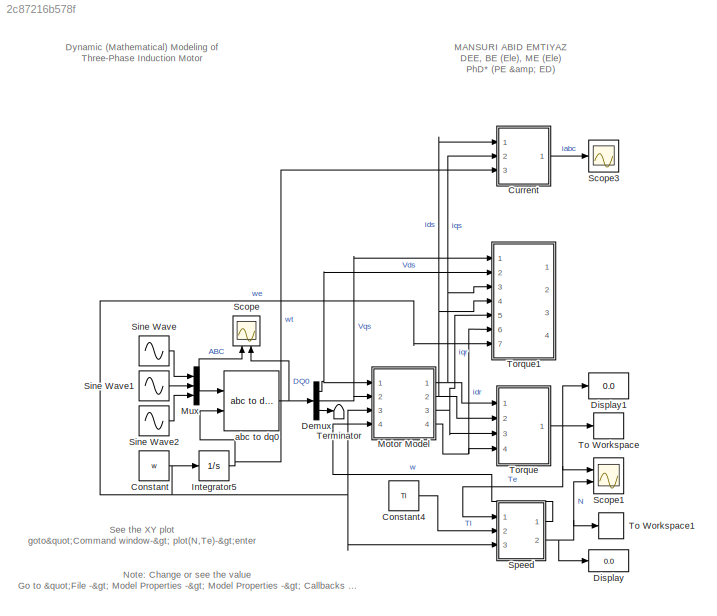
MODEL slx_2c87216b578f
KIND model
CONFIG AbsTol = auto
CONFIG EnableMultiTasking = off
CONFIG FixedStep = 1e-6
CONFIG InitFcn = Rs=1.405; % Stator Resistor (ohm)\nRr=1.395; % Rotor Resistor (ohm)\nLs=0.178039; % Stator Inductance (H)\nLr=0.178039; % Rotor Inductance (H)\nLm=0.1722; % Mutual Inductance (H)\nJ=0.0131; % Motor Inertia (Kg.m^2) \nP=4; % Pole\nTl=26.50; % Load Torque (N.m)\nw=2*pi*50; % w=2*pi*frequency\n\nLls=Ls-Lm;\nLlr=Lr-Lm;\n\n%%%%%\n% Ls=Lls+Lm\n% Lr=Llr+Lm\n% Nominal power = 4000 (VA)\n% Voltage (line-line) = 400 (Vrms)\n...<+39ch>
CONFIG MaxStep = auto
CONFIG MinStep = auto
CONFIG RelTol = 1e-3
CONFIG SampleTimeConstraint = Unconstrained
CONFIG Solver = ode5
CONFIG SolverName = ode5
CONFIG StartTime = 0.0
CONFIG StopTime = 1
BLOCK [Constant] Constant
  Value = w
BLOCK [Constant] Constant4
  Value = Tl
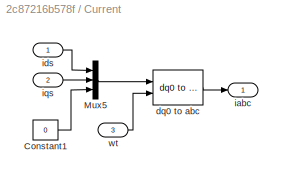
BLOCK [SubSystem] Current
  Ports = [3, 1]
  RequestExecContextInheritance = off
BLOCK [Constant] Current/Constant1
  Value = 0
BLOCK [Mux] Current/Mux5
  DisplayOption = bar
  Inputs = 3
  Ports = [3, 1]
BLOCK [Reference] Current/dq0 to abc  REF=powerlib_meascontrol/Transformations/dq0 to abc
  Ports = [2, 1]
  SourceBlock = powerlib_meascontrol/Transformations/dq0 to abc
  SourceProductBaseCode = PS
  SourceProductName = Simscape Electrical
  SourceType = dq0 to abc Transformation
BLOCK [Outport] Current/iabc
  IconDisplay = Port number
BLOCK [Inport] Current/ids
  IconDisplay = Port number
BLOCK [Inport] Current/iqs
  IconDisplay = Port number
  Port = 2
BLOCK [Inport] Current/wt
  IconDisplay = Port number
  Port = 3
BLOCK [Demux] Demux
  DisplayOption = bar
  Outputs = 3
  Ports = [1, 3]
BLOCK [Display] Display
  Decimation = 1
  Ports = [1]
BLOCK [Display] Display1
  Decimation = 1
  Ports = [1]
BLOCK [Integrator] Integrator5
  Ports = [1, 1]
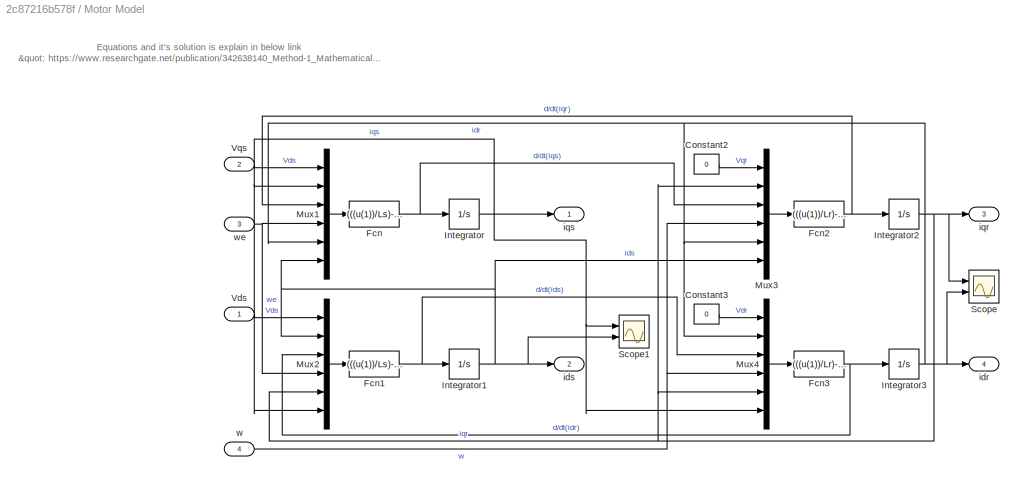
BLOCK [SubSystem] Motor Model
  Ports = [4, 4]
  RequestExecContextInheritance = off
BLOCK [Constant] Motor Model/Constant2
  Value = 0
BLOCK [Constant] Motor Model/Constant3
  Value = 0
BLOCK [Fcn] Motor Model/Fcn
  Expr = (((u(1))/Ls)-((Rs*u(2))/Ls)-((u(3)*Lm)/Ls)-(u(4)*u(6))-((u(4)*Lm*u(5))/Ls))
BLOCK [Fcn] Motor Model/Fcn1
  Expr = (((u(1))/Ls)-((Rs*u(2))/Ls)-((u(3)*Lm)/Ls)+(u(4)*u(6))+((u(4)*Lm*u(5))/Ls))
BLOCK [Fcn] Motor Model/Fcn2
  Expr = (((u(1))/Lr)-((Rr*u(2))/Lr)-((u(3)*Lm)/Lr)-(u(4)*u(5))-((u(4)*Lm*u(6))/Lr))
BLOCK [Fcn] Motor Model/Fcn3
  Expr = (((u(1))/Lr)-((Rr*u(2))/Lr)-((u(3)*Lm)/Lr)+(u(4)*u(5))+((u(4)*Lm*u(6))/Lr))
BLOCK [Integrator] Motor Model/Integrator
  Ports = [1, 1]
BLOCK [Integrator] Motor Model/Integrator1
  Ports = [1, 1]
BLOCK [Integrator] Motor Model/Integrator2
  Ports = [1, 1]
BLOCK [Integrator] Motor Model/Integrator3
  Ports = [1, 1]
BLOCK [Mux] Motor Model/Mux1
  DisplayOption = bar
  Inputs = 6
  Ports = [6, 1]
BLOCK [Mux] Motor Model/Mux2
  DisplayOption = bar
  Inputs = 6
  Ports = [6, 1]
BLOCK [Mux] Motor Model/Mux3
  DisplayOption = bar
  Inputs = 6
  Ports = [6, 1]
BLOCK [Mux] Motor Model/Mux4
  DisplayOption = bar
  Inputs = 6
  Ports = [6, 1]
BLOCK [Scope] Motor Model/Scope
  Floating = off
  NumInputPorts = 2
  Ports = [2]
  ScopeSpecificationString = Simulink.scopes.TimeScopeBlockCfg('CurrentConfiguration', extmgr.ConfigurationSet(extmgr.Configuration('Core','General UI',true,'FigureColor',[1 1 1]),extmgr.Configuration('Core','Source UI',true),extmgr.Configuration('Sources','WiredSimulink',true,'DataLoggingVariableName','ScopeData1'),extmgr.Configuration('Visuals','Time Domain',true,'TimeAxisLabels','All','SerializedDisplays',{struct('MinYLimR...<+1743ch>
BLOCK [Scope] Motor Model/Scope1
  Floating = off
  NumInputPorts = 2
  Ports = [2]
  ScopeSpecificationString = Simulink.scopes.TimeScopeBlockCfg('CurrentConfiguration', extmgr.ConfigurationSet(extmgr.Configuration('Core','General UI',true,'FigureColor',[1 1 1]),extmgr.Configuration('Core','Source UI',true),extmgr.Configuration('Sources','WiredSimulink',true,'DataLoggingVariableName','ScopeData2'),extmgr.Configuration('Visuals','Time Domain',true,'TimeAxisLabels','All','SerializedDisplays',{struct('MinYLimR...<+1686ch>
BLOCK [Inport] Motor Model/Vds
  IconDisplay = Port number
BLOCK [Inport] Motor Model/Vqs
  IconDisplay = Port number
  Port = 2
BLOCK [Outport] Motor Model/idr
  IconDisplay = Port number
  Port = 4
BLOCK [Outport] Motor Model/ids
  IconDisplay = Port number
  Port = 2
BLOCK [Outport] Motor Model/iqr
  IconDisplay = Port number
  Port = 3
BLOCK [Outport] Motor Model/iqs
  IconDisplay = Port number
BLOCK [Inport] Motor Model/w
  IconDisplay = Port number
  Port = 4
BLOCK [Inport] Motor Model/we
  IconDisplay = Port number
  Port = 3
BLOCK [Mux] Mux
  DisplayOption = bar
  Inputs = 3
  Ports = [3, 1]
BLOCK [Scope] Scope
  Floating = off
  NumInputPorts = 2
  Ports = [2]
  ScopeSpecificationString = Simulink.scopes.TimeScopeBlockCfg('CurrentConfiguration', extmgr.ConfigurationSet(extmgr.Configuration('Core','General UI',true,'FigureColor',[1 1 1]),extmgr.Configuration('Core','Source UI',true),extmgr.Configuration('Sources','WiredSimulink',true),extmgr.Configuration('Visuals','Time Domain',true,'TimeAxisLabels','All','SerializedDisplays',{struct('MinYLimReal','-466.875','MaxYLimReal','466.875'...<+3137ch>
BLOCK [Scope] Scope1
  Floating = off
  NumInputPorts = 2
  Ports = [2]
  ScopeSpecificationString = Simulink.scopes.TimeScopeBlockCfg('CurrentConfiguration', extmgr.ConfigurationSet(extmgr.Configuration('Core','General UI',true,'FigureColor',[1 1 1]),extmgr.Configuration('Core','Source UI',true),extmgr.Configuration('Sources','WiredSimulink',true,'DataLoggingVariableName','ScopeData1'),extmgr.Configuration('Visuals','Time Domain',true,'TimeAxisLabels','All','SerializedDisplays',{struct('MinYLimR...<+2286ch>
BLOCK [Scope] Scope3
  Floating = off
  NumInputPorts = 1
  Ports = [1]
  ScopeSpecificationString = Simulink.scopes.TimeScopeBlockCfg('CurrentConfiguration', extmgr.ConfigurationSet(extmgr.Configuration('Core','General UI',true,'FigureColor',[1 1 1]),extmgr.Configuration('Core','Source UI',true),extmgr.Configuration('Sources','WiredSimulink',true,'DataLoggingVariableName','ScopeData1','DataLogging',true),extmgr.Configuration('Visuals','Time Domain',true,'TimeAxisLabels','All','SerializedDisplays...<+2485ch>
BLOCK [Sin] Sine Wave
  Amplitude = 373.5
  Frequency = 2*pi*50
  Ports = [0, 1]
  SampleTime = 0
BLOCK [Sin] Sine Wave1
  Amplitude = 373.5
  Frequency = 2*pi*50
  Phase = -((2*pi)/3)
  Ports = [0, 1]
  SampleTime = 0
BLOCK [Sin] Sine Wave2
  Amplitude = 373.5
  Frequency = 2*pi*50
  Phase = ((2*pi)/3)
  Ports = [0, 1]
  SampleTime = 0
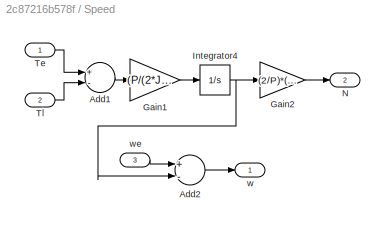
BLOCK [SubSystem] Speed
  Ports = [3, 2]
  RequestExecContextInheritance = off
BLOCK [Sum] Speed/Add1
  InputSameDT = off
  Inputs = +-
  OutDataTypeStr = Inherit: Inherit via internal rule
  Ports = [2, 1]
  SaturateOnIntegerOverflow = off
BLOCK [Sum] Speed/Add2
  InputSameDT = off
  Inputs = +-
  OutDataTypeStr = Inherit: Inherit via internal rule
  Ports = [2, 1]
  SaturateOnIntegerOverflow = off
BLOCK [Gain] Speed/Gain1
  Gain = (P/(2*J))
  OutDataTypeStr = Inherit: Inherit via internal rule
  ParamDataTypeStr = Inherit: Inherit via internal rule
  SaturateOnIntegerOverflow = off
BLOCK [Gain] Speed/Gain2
  Gain = (2/P)*(60/(2*pi))
  OutDataTypeStr = Inherit: Inherit via internal rule
  ParamDataTypeStr = Inherit: Inherit via internal rule
  SaturateOnIntegerOverflow = off
BLOCK [Integrator] Speed/Integrator4
  Ports = [1, 1]
BLOCK [Outport] Speed/N
  IconDisplay = Port number
  Port = 2
BLOCK [Inport] Speed/Te
  IconDisplay = Port number
BLOCK [Inport] Speed/Tl
  IconDisplay = Port number
  Port = 2
BLOCK [Outport] Speed/w
  IconDisplay = Port number
BLOCK [Inport] Speed/we
  IconDisplay = Port number
  Port = 3
BLOCK [Terminator] Terminator
BLOCK [ToWorkspace] To Workspace
  FixptAsFi = on
  MaxDataPoints = inf
  Ports = [1]
  SampleTime = -1
  VariableName = Te
BLOCK [ToWorkspace] To Workspace1
  FixptAsFi = on
  MaxDataPoints = inf
  Ports = [1]
  SampleTime = -1
  VariableName = N
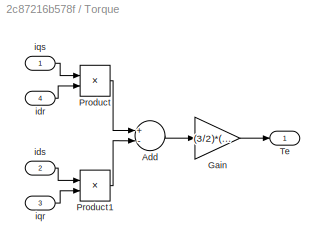
BLOCK [SubSystem] Torque
  Ports = [4, 1]
  RequestExecContextInheritance = off
BLOCK [Sum] Torque/Add
  InputSameDT = off
  Inputs = +-
  OutDataTypeStr = Inherit: Inherit via internal rule
  Ports = [2, 1]
  SaturateOnIntegerOverflow = off
BLOCK [Gain] Torque/Gain
  Gain = (3/2)*(P/2)*Lm
  OutDataTypeStr = Inherit: Inherit via internal rule
  ParamDataTypeStr = Inherit: Inherit via internal rule
  SaturateOnIntegerOverflow = off
BLOCK [Product] Torque/Product
  InputSameDT = off
  OutDataTypeStr = Inherit: Inherit via internal rule
  Ports = [2, 1]
  RndMeth = Floor
  SaturateOnIntegerOverflow = off
BLOCK [Product] Torque/Product1
  InputSameDT = off
  OutDataTypeStr = Inherit: Inherit via internal rule
  Ports = [2, 1]
  RndMeth = Floor
  SaturateOnIntegerOverflow = off
BLOCK [Outport] Torque/Te
  IconDisplay = Port number
BLOCK [Inport] Torque/idr
  IconDisplay = Port number
  Port = 4
BLOCK [Inport] Torque/ids
  IconDisplay = Port number
  Port = 2
BLOCK [Inport] Torque/iqr
  IconDisplay = Port number
  Port = 3
BLOCK [Inport] Torque/iqs
  IconDisplay = Port number
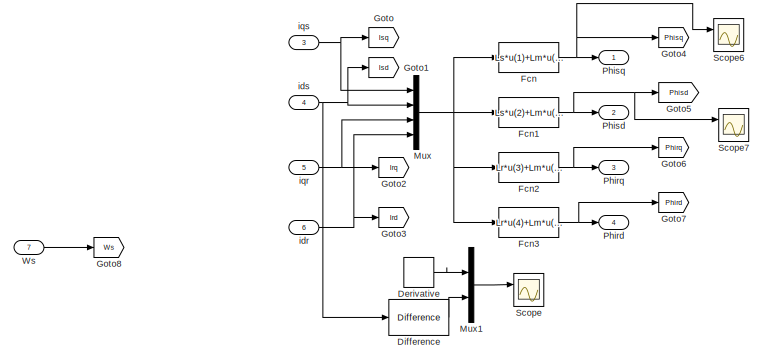
[diagram: Torque1 - part 1/2, top right region]
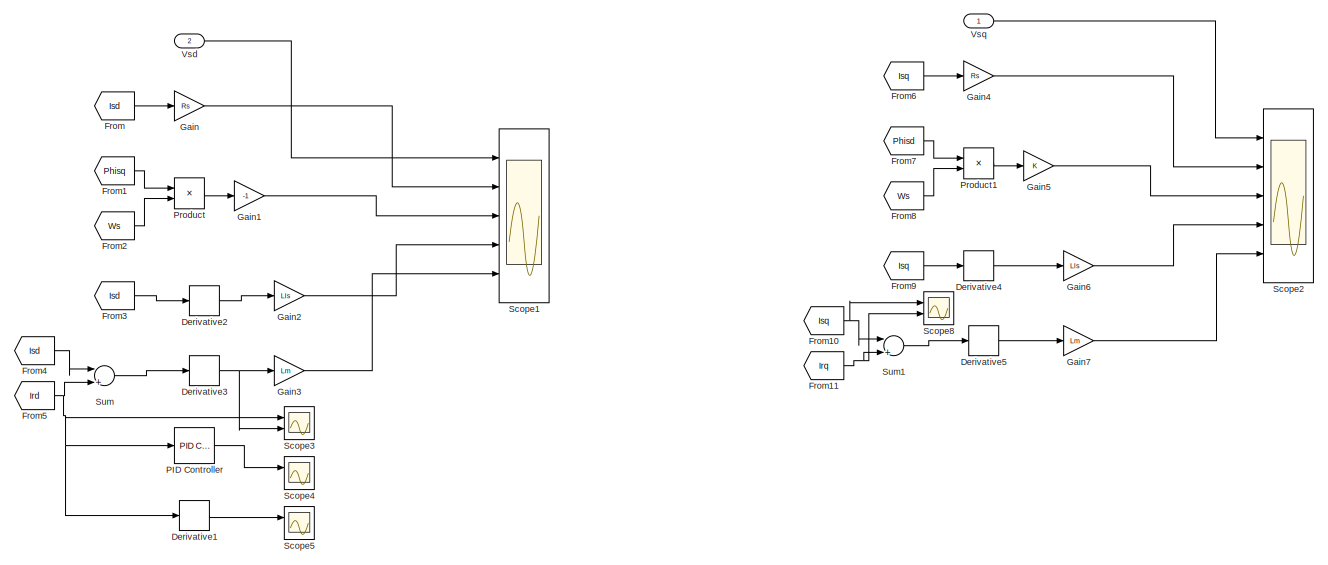
[diagram: Torque1 - part 2/2, full width, bottom band]
BLOCK [SubSystem] Torque1
  Ports = [7, 4]
  RequestExecContextInheritance = off
BLOCK [Derivative] Torque1/Derivative
BLOCK [Derivative] Torque1/Derivative1
BLOCK [Derivative] Torque1/Derivative2
BLOCK [Derivative] Torque1/Derivative3
BLOCK [Derivative] Torque1/Derivative4
BLOCK [Derivative] Torque1/Derivative5
BLOCK [Reference] Torque1/Difference  REF=simulink/Discrete/Difference
  Ports = [1, 1]
  SourceBlock = simulink/Discrete/Difference
  SourceProductBaseCode = SL
  SourceProductName = Simulink
  SourceType = Difference
BLOCK [Fcn] Torque1/Fcn
  Expr = Ls*u(1)+Lm*u(3)
BLOCK [Fcn] Torque1/Fcn1
  Expr = Ls*u(2)+Lm*u(4)
BLOCK [Fcn] Torque1/Fcn2
  Expr = Lr*u(3)+Lm*u(1)
BLOCK [Fcn] Torque1/Fcn3
  Expr = Lr*u(4)+Lm*u(2)
BLOCK [From] Torque1/From
  GotoTag = Isd
BLOCK [From] Torque1/From1
  GotoTag = Phisq
BLOCK [From] Torque1/From10
  GotoTag = Isq
BLOCK [From] Torque1/From11
  GotoTag = Irq
BLOCK [From] Torque1/From2
  GotoTag = Ws
BLOCK [From] Torque1/From3
  GotoTag = Isd
BLOCK [From] Torque1/From4
  GotoTag = Isd
BLOCK [From] Torque1/From5
  GotoTag = Ird
BLOCK [From] Torque1/From6
  GotoTag = Isq
BLOCK [From] Torque1/From7
  GotoTag = Phisd
BLOCK [From] Torque1/From8
  GotoTag = Ws
BLOCK [From] Torque1/From9
  GotoTag = Isq
BLOCK [Gain] Torque1/Gain
  Gain = Rs
  OutDataTypeStr = Inherit: Inherit via internal rule
  ParamDataTypeStr = Inherit: Inherit via internal rule
  SaturateOnIntegerOverflow = off
BLOCK [Gain] Torque1/Gain1
  Gain = -1
  OutDataTypeStr = Inherit: Inherit via internal rule
  ParamDataTypeStr = Inherit: Inherit via internal rule
  SaturateOnIntegerOverflow = off
BLOCK [Gain] Torque1/Gain2
  Gain = Lls
  OutDataTypeStr = Inherit: Inherit via internal rule
  ParamDataTypeStr = Inherit: Inherit via internal rule
  SaturateOnIntegerOverflow = off
BLOCK [Gain] Torque1/Gain3
  Gain = Lm
  OutDataTypeStr = Inherit: Inherit via internal rule
  ParamDataTypeStr = Inherit: Inherit via internal rule
  SaturateOnIntegerOverflow = off
BLOCK [Gain] Torque1/Gain4
  Gain = Rs
  OutDataTypeStr = Inherit: Inherit via internal rule
  ParamDataTypeStr = Inherit: Inherit via internal rule
  SaturateOnIntegerOverflow = off
BLOCK [Gain] Torque1/Gain5
  OutDataTypeStr = Inherit: Inherit via internal rule
  ParamDataTypeStr = Inherit: Inherit via internal rule
  SaturateOnIntegerOverflow = off
BLOCK [Gain] Torque1/Gain6
  Gain = Lls
  OutDataTypeStr = Inherit: Inherit via internal rule
  ParamDataTypeStr = Inherit: Inherit via internal rule
  SaturateOnIntegerOverflow = off
BLOCK [Gain] Torque1/Gain7
  Gain = Lm
  OutDataTypeStr = Inherit: Inherit via internal rule
  ParamDataTypeStr = Inherit: Inherit via internal rule
  SaturateOnIntegerOverflow = off
BLOCK [Goto] Torque1/Goto
  GotoTag = Isq
BLOCK [Goto] Torque1/Goto1
  GotoTag = Isd
BLOCK [Goto] Torque1/Goto2
  GotoTag = Irq
BLOCK [Goto] Torque1/Goto3
  GotoTag = Ird
BLOCK [Goto] Torque1/Goto4
  GotoTag = Phisq
BLOCK [Goto] Torque1/Goto5
  GotoTag = Phisd
BLOCK [Goto] Torque1/Goto6
  GotoTag = Phirq
BLOCK [Goto] Torque1/Goto7
  GotoTag = Phird
BLOCK [Goto] Torque1/Goto8
  GotoTag = Ws
BLOCK [Mux] Torque1/Mux
  DisplayOption = bar
  Ports = [4, 1]
BLOCK [Mux] Torque1/Mux1
  DisplayOption = bar
  Inputs = 2
  Ports = [2, 1]
BLOCK [Reference] Torque1/PID Controller  REF=simulink/Continuous/PID Controller
  Ports = [1, 1]
  SourceBlock = simulink/Continuous/PID Controller
  SourceProductBaseCode = SL
  SourceProductName = Simulink
  SourceType = PID 1dof
BLOCK [Outport] Torque1/Phird
  IconDisplay = Port number
  Port = 4
BLOCK [Outport] Torque1/Phirq
  IconDisplay = Port number
  Port = 3
BLOCK [Outport] Torque1/Phisd
  IconDisplay = Port number
  Port = 2
BLOCK [Outport] Torque1/Phisq
  IconDisplay = Port number
BLOCK [Product] Torque1/Product
  InputSameDT = off
  OutDataTypeStr = Inherit: Inherit via internal rule
  Ports = [2, 1]
  RndMeth = Floor
  SaturateOnIntegerOverflow = off
BLOCK [Product] Torque1/Product1
  InputSameDT = off
  OutDataTypeStr = Inherit: Inherit via internal rule
  Ports = [2, 1]
  RndMeth = Floor
  SaturateOnIntegerOverflow = off
BLOCK [Scope] Torque1/Scope
  Floating = off
  NumInputPorts = 2
  Ports = [2]
  ScopeSpecificationString = Simulink.scopes.TimeScopeBlockCfg('CurrentConfiguration', extmgr.ConfigurationSet(extmgr.Configuration('Core','General UI',true),extmgr.Configuration('Core','Source UI',true),extmgr.Configuration('Sources','WiredSimulink',true,'DataLoggingVariableName','ScopeData1'),extmgr.Configuration('Visuals','Time Domain',true,'SerializedDisplays',{struct('MinYLimReal','-0.01279','MaxYLimReal','0.03755','YLab...<+1423ch>
BLOCK [Scope] Torque1/Scope1
  Floating = off
  NumInputPorts = 5
  Ports = [5]
  ScopeSpecificationString = Simulink.scopes.TimeScopeBlockCfg('CurrentConfiguration', extmgr.ConfigurationSet(extmgr.Configuration('Core','General UI',true),extmgr.Configuration('Core','Source UI',true),extmgr.Configuration('Sources','WiredSimulink',true,'DataLoggingVariableName','ScopeData2'),extmgr.Configuration('Visuals','Time Domain',true,'SerializedDisplays',{struct('MinYLimReal','-56.31099','MaxYLimReal','421.25678','Y...<+6263ch>
BLOCK [Scope] Torque1/Scope2
  Floating = off
  NumInputPorts = 5
  Ports = [5]
  ScopeSpecificationString = Simulink.scopes.TimeScopeBlockCfg('CurrentConfiguration', extmgr.ConfigurationSet(extmgr.Configuration('Core','General UI',true),extmgr.Configuration('Core','Source UI',true),extmgr.Configuration('Sources','WiredSimulink',true,'DataLoggingVariableName','ScopeData3'),extmgr.Configuration('Visuals','Time Domain',true,'SerializedDisplays',{struct('MinYLimReal','76.61072','MaxYLimReal','288.86307','YL...<+6211ch>
BLOCK [Scope] Torque1/Scope3
  Floating = off
  NumInputPorts = 2
  Ports = [2]
  ScopeSpecificationString = Simulink.scopes.TimeScopeBlockCfg('CurrentConfiguration', extmgr.ConfigurationSet(extmgr.Configuration('Core','General UI',true),extmgr.Configuration('Core','Source UI',true),extmgr.Configuration('Sources','WiredSimulink',true,'DataLoggingVariableName','ScopeData4'),extmgr.Configuration('Visuals','Time Domain',true,'SerializedDisplays',{struct('MinYLimReal','-0.05327','MaxYLimReal','0.01893','YLab...<+1453ch>
BLOCK [Scope] Torque1/Scope4
  Floating = off
  NumInputPorts = 2
  Ports = [2]
  ScopeSpecificationString = Simulink.scopes.TimeScopeBlockCfg('CurrentConfiguration', extmgr.ConfigurationSet(extmgr.Configuration('Core','General UI',true),extmgr.Configuration('Core','Source UI',true),extmgr.Configuration('Sources','WiredSimulink',true,'DataLoggingVariableName','ScopeData5'),extmgr.Configuration('Visuals','Time Domain',true,'SerializedDisplays',{struct('MinYLimReal','-100','MaxYLimReal','100','YLabelReal',...<+1415ch>
BLOCK [Scope] Torque1/Scope5
  Floating = off
  NumInputPorts = 2
  Ports = [2]
  ScopeSpecificationString = Simulink.scopes.TimeScopeBlockCfg('CurrentConfiguration', extmgr.ConfigurationSet(extmgr.Configuration('Core','General UI',true),extmgr.Configuration('Core','Source UI',true),extmgr.Configuration('Sources','WiredSimulink',true,'DataLoggingVariableName','ScopeData6'),extmgr.Configuration('Visuals','Time Domain',true,'SerializedDisplays',{struct('MinYLimReal','-1000','MaxYLimReal','1000','YLabelReal...<+1445ch>
BLOCK [Scope] Torque1/Scope6
  Floating = off
  NumInputPorts = 2
  Ports = [2]
  ScopeSpecificationString = Simulink.scopes.TimeScopeBlockCfg('CurrentConfiguration', extmgr.ConfigurationSet(extmgr.Configuration('Core','General UI',true),extmgr.Configuration('Core','Source UI',true),extmgr.Configuration('Sources','WiredSimulink',true,'DataLoggingVariableName','ScopeData7'),extmgr.Configuration('Visuals','Time Domain',true,'SerializedDisplays',{struct('MinYLimReal','-1.76502','MaxYLimReal','0.19611','YLab...<+1429ch>
BLOCK [Scope] Torque1/Scope7
  Floating = off
  NumInputPorts = 2
  Ports = [2]
  ScopeSpecificationString = Simulink.scopes.TimeScopeBlockCfg('CurrentConfiguration', extmgr.ConfigurationSet(extmgr.Configuration('Core','General UI',true),extmgr.Configuration('Core','Source UI',true),extmgr.Configuration('Sources','WiredSimulink',true,'DataLoggingVariableName','ScopeData8'),extmgr.Configuration('Visuals','Time Domain',true,'SerializedDisplays',{struct('MinYLimReal','-0.42579','MaxYLimReal','1.14571','YLab...<+1404ch>
BLOCK [Scope] Torque1/Scope8
  Floating = off
  NumInputPorts = 2
  Ports = [2]
  ScopeSpecificationString = Simulink.scopes.TimeScopeBlockCfg('CurrentConfiguration', extmgr.ConfigurationSet(extmgr.Configuration('Core','General UI',true),extmgr.Configuration('Core','Source UI',true),extmgr.Configuration('Sources','WiredSimulink',true,'DataLoggingVariableName','ScopeData9'),extmgr.Configuration('Visuals','Time Domain',true,'SerializedDisplays',{struct('MinYLimReal','-90.62081','MaxYLimReal','84.07784','YL...<+1407ch>
BLOCK [Sum] Torque1/Sum
  InputSameDT = off
  Inputs = |++
  OutDataTypeStr = Inherit: Inherit via internal rule
  Ports = [2, 1]
  SaturateOnIntegerOverflow = off
BLOCK [Sum] Torque1/Sum1
  InputSameDT = off
  Inputs = |++
  OutDataTypeStr = Inherit: Inherit via internal rule
  Ports = [2, 1]
  SaturateOnIntegerOverflow = off
BLOCK [Inport] Torque1/Vsd
  IconDisplay = Port number
  Port = 2
BLOCK [Inport] Torque1/Vsq
  IconDisplay = Port number
BLOCK [Inport] Torque1/Ws
  IconDisplay = Port number
  Port = 7
BLOCK [Inport] Torque1/idr
  IconDisplay = Port number
  Port = 6
BLOCK [Inport] Torque1/ids
  IconDisplay = Port number
  Port = 4
BLOCK [Inport] Torque1/iqr
  IconDisplay = Port number
  Port = 5
BLOCK [Inport] Torque1/iqs
  IconDisplay = Port number
  Port = 3
BLOCK [Reference] abc to dq0  REF=powerlib_meascontrol/Transformations/abc to dq0
  Ports = [2, 1]
  SourceBlock = powerlib_meascontrol/Transformations/abc to dq0
  SourceProductBaseCode = PS
  SourceProductName = Simscape Electrical
  SourceType = abc to dq0 Transformation
ANNOTATION (root): Dynamic (Mathematical) Modeling of Three-Phase Induction Motor
ANNOTATION (root): See the XY plot goto" Command window-> plot(N,Te)->enter
ANNOTATION (root): MANSURI ABID EMTIYAZ DEE, BE (Ele), ME (Ele) PhD* (PE & ED)
ANNOTATION (root): Note: Change or see the value Go to "File -> Model Properties -> Model Properties -> Callbacks -> InitFcn"
ANNOTATION Motor Model: Equations and it's solution is explain in below link " https://www.researchgate.net/publication/342638140_Method-1_Mathematical_Modeling_of_Three_Phase_Induction_Motor_Equations_and_its_Solution_-_Hand_outs "
LINE Constant4:1 -> Speed:2
NET Constant:1 -> Integrator5:1, Motor Model:3, Speed:3, Torque1:7
LINE Current/Constant1:1 -> Current/Mux5:3
LINE Current/Mux5:1 -> Current/dq0 to abc:1
LINE Current/dq0 to abc:1 -> Current/iabc:1
LINE Current/ids:1 -> Current/Mux5:1
LINE Current/iqs:1 -> Current/Mux5:2
LINE Current/wt:1 -> Current/dq0 to abc:2
LINE Current:1 -> Scope3:1
NET Demux:1 -> Motor Model:1, Torque1:2
NET Demux:2 -> Motor Model:2, Torque1:1
LINE Demux:3 -> Terminator:1
NET Integrator5:1 -> Current:3, abc to dq0:2
LINE Motor Model/Constant2:1 -> Motor Model/Mux3:1
LINE Motor Model/Constant3:1 -> Motor Model/Mux4:1
NET Motor Model/Fcn1:1 -> Motor Model/Integrator1:1, Motor Model/Mux4:3
NET Motor Model/Fcn2:1 -> Motor Model/Integrator2:1, Motor Model/Mux1:3
NET Motor Model/Fcn3:1 -> Motor Model/Integrator3:1, Motor Model/Mux2:3
NET Motor Model/Fcn:1 -> Motor Model/Integrator:1, Motor Model/Mux3:3
NET Motor Model/Integrator1:1 -> Motor Model/Mux1:6, Motor Model/Mux2:2, Motor Model/Mux3:6, Motor Model/Scope1:2, Motor Model/ids:1
NET Motor Model/Integrator2:1 -> Motor Model/Mux2:5, Motor Model/Mux3:2, Motor Model/Mux4:5, Motor Model/Scope:1, Motor Model/iqr:1
NET Motor Model/Integrator3:1 -> Motor Model/Mux1:5, Motor Model/Mux3:5, Motor Model/Mux4:2, Motor Model/Scope:2, Motor Model/idr:1
NET Motor Model/Integrator:1 -> Motor Model/Mux1:2, Motor Model/Mux2:6, Motor Model/Mux4:6, Motor Model/Scope1:1, Motor Model/iqs:1
LINE Motor Model/Mux1:1 -> Motor Model/Fcn:1
LINE Motor Model/Mux2:1 -> Motor Model/Fcn1:1
LINE Motor Model/Mux3:1 -> Motor Model/Fcn2:1
LINE Motor Model/Mux4:1 -> Motor Model/Fcn3:1
LINE Motor Model/Vds:1 -> Motor Model/Mux2:1
LINE Motor Model/Vqs:1 -> Motor Model/Mux1:1
NET Motor Model/w:1 -> Motor Model/Mux3:4, Motor Model/Mux4:4
NET Motor Model/we:1 -> Motor Model/Mux1:4, Motor Model/Mux2:4
NET Motor Model:1 -> Current:2, Torque1:3, Torque:1
NET Motor Model:2 -> Current:1, Torque1:4, Torque:2
NET Motor Model:3 -> Torque1:5, Torque:3
NET Motor Model:4 -> Torque1:6, Torque:4
NET Mux:1 -> Scope:1, abc to dq0:1
LINE Sine Wave1:1 -> Mux:2
LINE Sine Wave2:1 -> Mux:3
LINE Sine Wave:1 -> Mux:1
LINE Speed/Add1:1 -> Speed/Gain1:1
LINE Speed/Add2:1 -> Speed/w:1
LINE Speed/Gain1:1 -> Speed/Integrator4:1
LINE Speed/Gain2:1 -> Speed/N:1
NET Speed/Integrator4:1 -> Speed/Add2:2, Speed/Gain2:1
LINE Speed/Te:1 -> Speed/Add1:1
LINE Speed/Tl:1 -> Speed/Add1:2
LINE Speed/we:1 -> Speed/Add2:1
LINE Speed:1 -> Motor Model:4
NET Speed:2 -> Display:1, Scope1:2, To Workspace1:1
LINE Torque/Add:1 -> Torque/Gain:1
LINE Torque/Gain:1 -> Torque/Te:1
LINE Torque/Product1:1 -> Torque/Add:2
LINE Torque/Product:1 -> Torque/Add:1
LINE Torque/idr:1 -> Torque/Product:2
LINE Torque/ids:1 -> Torque/Product1:1
LINE Torque/iqr:1 -> Torque/Product1:2
LINE Torque/iqs:1 -> Torque/Product:1
LINE Torque1/Derivative1:1 -> Torque1/Scope5:1
LINE Torque1/Derivative2:1 -> Torque1/Gain2:1
NET Torque1/Derivative3:1 -> Torque1/Gain3:1, Torque1/Scope3:2
LINE Torque1/Derivative4:1 -> Torque1/Gain6:1
LINE Torque1/Derivative5:1 -> Torque1/Gain7:1
LINE Torque1/Derivative:1 -> Torque1/Mux1:1
LINE Torque1/Difference:1 -> Torque1/Mux1:2
NET Torque1/Fcn1:1 -> Torque1/Goto5:1, Torque1/Phisd:1, Torque1/Scope7:1
NET Torque1/Fcn2:1 -> Torque1/Goto6:1, Torque1/Phirq:1
NET Torque1/Fcn3:1 -> Torque1/Goto7:1, Torque1/Phird:1
NET Torque1/Fcn:1 -> Torque1/Goto4:1, Torque1/Phisq:1, Torque1/Scope6:1
NET Torque1/From10:1 -> Torque1/Scope8:1, Torque1/Sum1:1
NET Torque1/From11:1 -> Torque1/Scope8:2, Torque1/Sum1:2
LINE Torque1/From1:1 -> Torque1/Product:1
LINE Torque1/From2:1 -> Torque1/Product:2
LINE Torque1/From3:1 -> Torque1/Derivative2:1
LINE Torque1/From4:1 -> Torque1/Sum:1
NET Torque1/From5:1 -> Torque1/Derivative1:1, Torque1/PID Controller:1, Torque1/Scope3:1, Torque1/Sum:2
LINE Torque1/From6:1 -> Torque1/Gain4:1
LINE Torque1/From7:1 -> Torque1/Product1:1
LINE Torque1/From8:1 -> Torque1/Product1:2
LINE Torque1/From9:1 -> Torque1/Derivative4:1
LINE Torque1/From:1 -> Torque1/Gain:1
LINE Torque1/Gain1:1 -> Torque1/Scope1:3
LINE Torque1/Gain2:1 -> Torque1/Scope1:4
LINE Torque1/Gain3:1 -> Torque1/Scope1:5
LINE Torque1/Gain4:1 -> Torque1/Scope2:2
LINE Torque1/Gain5:1 -> Torque1/Scope2:3
LINE Torque1/Gain6:1 -> Torque1/Scope2:4
LINE Torque1/Gain7:1 -> Torque1/Scope2:5
LINE Torque1/Gain:1 -> Torque1/Scope1:2
LINE Torque1/Mux1:1 -> Torque1/Scope:1
NET Torque1/Mux:1 -> Torque1/Fcn1:1, Torque1/Fcn2:1, Torque1/Fcn3:1, Torque1/Fcn:1
LINE Torque1/PID Controller:1 -> Torque1/Scope4:1
LINE Torque1/Product1:1 -> Torque1/Gain5:1
LINE Torque1/Product:1 -> Torque1/Gain1:1
LINE Torque1/Sum1:1 -> Torque1/Derivative5:1
LINE Torque1/Sum:1 -> Torque1/Derivative3:1
LINE Torque1/Vsd:1 -> Torque1/Scope1:1
LINE Torque1/Vsq:1 -> Torque1/Scope2:1
LINE Torque1/Ws:1 -> Torque1/Goto8:1
NET Torque1/idr:1 -> Torque1/Goto3:1, Torque1/Mux:4
NET Torque1/ids:1 -> Torque1/Difference:1, Torque1/Goto1:1, Torque1/Mux:2
NET Torque1/iqr:1 -> Torque1/Goto2:1, Torque1/Mux:3
NET Torque1/iqs:1 -> Torque1/Goto:1, Torque1/Mux:1
NET Torque:1 -> Display1:1, Scope1:1, Speed:1, To Workspace:1
NET abc to dq0:1 -> Demux:1, Scope:2
note: NET lines group one-source signal fan-out (src -> all destinations, sorted); 1:1 wires keep LINE
